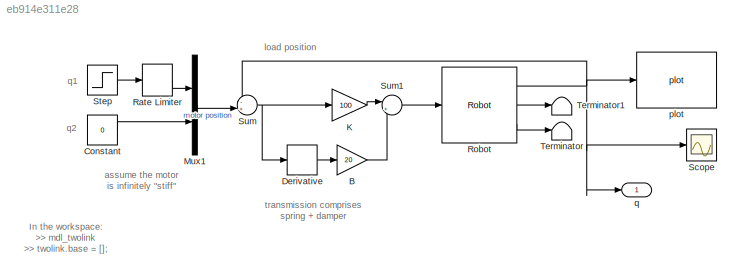
MODEL slx_eb914e311e28
KIND model
CONFIG AbsTol = auto
CONFIG FixedStep = auto
CONFIG MaxStep = auto
CONFIG MinStep = auto
CONFIG PreLoadFcn = twolink
CONFIG RelTol = 1e-3
CONFIG SampleTimeConstraint = Unconstrained
CONFIG Solver = ode45
CONFIG SolverMode = Auto
CONFIG SolverName = ode45
CONFIG StartTime = 0.0
CONFIG StopTime = 4
BLOCK [Gain] B
  Gain = 20
BLOCK [Constant] Constant
  Value = 0
BLOCK [Derivative] Derivative
BLOCK [Gain] K
  Gain = 100
BLOCK [Mux] Mux1
  DisplayOption = bar
  Inputs = 2
  Ports = [2, 1]
BLOCK [RateLimiter] Rate Limiter
  FallingSlewLimit = -50
  RisingSlewLimit = 50
BLOCK [Reference] Robot  REF=roblocks/Arm/Robot  (lib defined in mdl_2a292b13c81b, mdl_69400f8cfe22, +12 more)
  Ports = [1, 3]
  SourceBlock = roblocks/Arm/Robot
  q0 = [0 0]
  robot = twolink
BLOCK [Scope] Scope
  DataFormat = StructureWithTime
  Decimation = 1
  Floating = off
  Grid = on
  LimitDataPoints = on
  MaxDataPoints = 5000
  NumInputPorts = 1
  Ports = [1]
  SampleInput = off
  SampleTime = -1
  SaveName = ScopeData
  SaveToWorkspace = off
  ShowLegends = off
  TickLabels = OneTimeTick
  TimeRange = auto
  YMax = 1.5
  YMin = -0.5
  ZoomMode = on
BLOCK [Step] Step
  SampleTime = 0
BLOCK [Sum] Sum
  IconShape = round
  Inputs = -+|
  Ports = [2, 1]
BLOCK [Sum] Sum1
  IconShape = round
  Inputs = |++
  Ports = [2, 1]
BLOCK [Terminator] Terminator
BLOCK [Terminator] Terminator1
BLOCK [Reference] plot  REF=roblocks/Arm/plot  (lib defined in mdl_2a292b13c81b, mdl_69400f8cfe22, +12 more)
  Ports = [1]
  SourceBlock = roblocks/Arm/plot
  fps = 5
  holdplot = on
  robot = twolink
BLOCK [Outport] q
  IconDisplay = Port number
ANNOTATION (root): In the workspace: >> mdl_twolink >> twolink.base = [];
ANNOTATION (root): assume the motor is infinitely "stiff"
ANNOTATION (root): load position
ANNOTATION (root): q1
ANNOTATION (root): q2
ANNOTATION (root): transmission comprises spring + damper
LINE B:1 -> Sum1:2
LINE Constant:1 -> Mux1:2
LINE Derivative:1 -> B:1
LINE K:1 -> Sum1:1
LINE Mux1:1 -> Sum:2
LINE Rate Limiter:1 -> Mux1:1
NET Robot:1 -> Scope:1, Sum:1, plot:1, q:1
LINE Robot:2 -> Terminator1:1
LINE Robot:3 -> Terminator:1
LINE Step:1 -> Rate Limiter:1
LINE Sum1:1 -> Robot:1
NET Sum:1 -> Derivative:1, K:1
note: NET lines group one-source signal fan-out (src -> all destinations, sorted); 1:1 wires keep LINE
